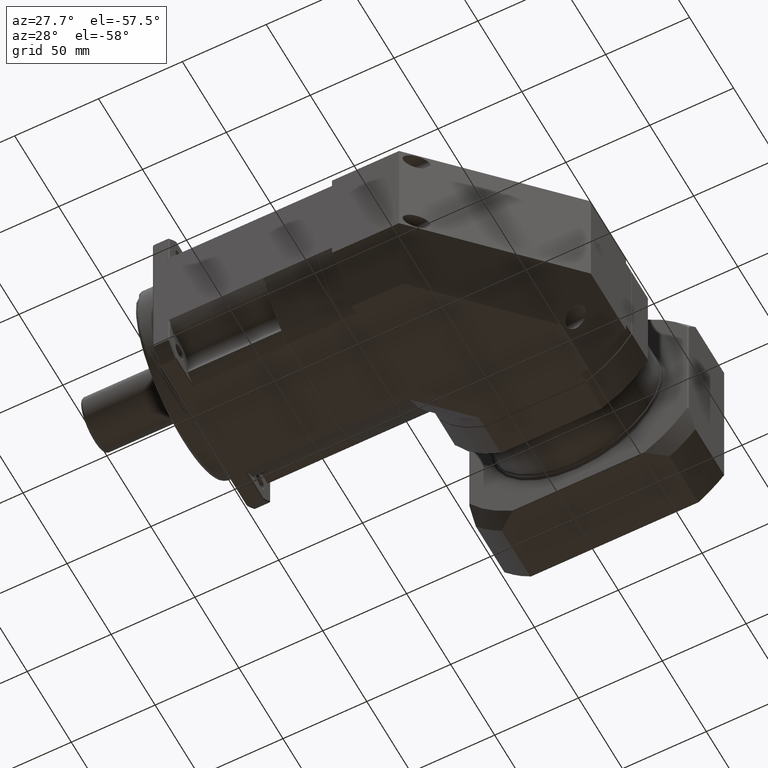
[diagram: clean part render]
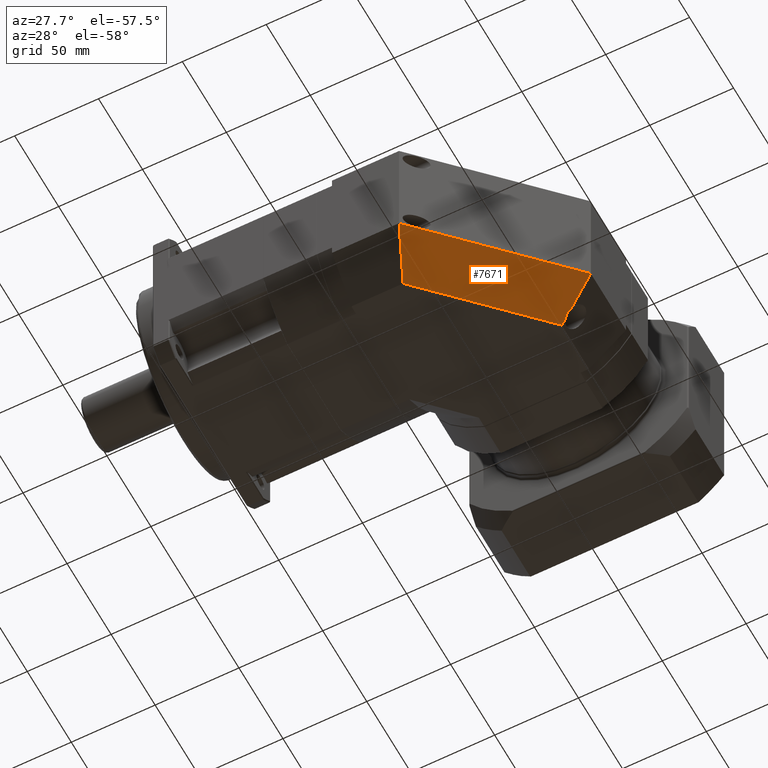
[diagram: same view with one face highlighted and labeled with its STEP entity id]
A machine part, auxiliary view. The second image highlights one B-rep face of the part: STEP entity #7671.
In plain terms, the highlighted planar face has unit normal (0.5, -0.5, -0.7071).
Its self-contained STEP definition (entity closure, byte-faithful):
#93=ELLIPSE('',#8392,11.0000000000021,5.5);
#260=LINE('',#12242,#650);
#265=LINE('',#12269,#655);
#268=LINE('',#12274,#658);
#303=LINE('',#12353,#693);
#304=LINE('',#12357,#694);
#650=VECTOR('',#9642,87.8406204335866);
#655=VECTOR('',#9675,4.34024426141715);
#658=VECTOR('',#9678,22.1049371921453);
#693=VECTOR('',#9765,32.4197666805731);
#694=VECTOR('',#9772,106.066017178003);
#1075=PLANE('',#8391);
#2128=FACE_OUTER_BOUND('',#2760,.T.);
#2760=EDGE_LOOP('',(#5898,#5899,#5900,#5901,#5902,#5903));
#3916=VERTEX_POINT('',#12239);
#3917=VERTEX_POINT('',#12241);
#3924=VERTEX_POINT('',#12266);
#3925=VERTEX_POINT('',#12267);
#3927=VERTEX_POINT('',#12272);
#3945=VERTEX_POINT('',#12349);
#4648=EDGE_CURVE('',#3917,#3916,#260,.T.);
#4658=EDGE_CURVE('',#3925,#3916,#265,.T.);
#4661=EDGE_CURVE('',#3927,#3924,#268,.T.);
#4702=EDGE_CURVE('',#3917,#3945,#303,.T.);
#4703=EDGE_CURVE('',#3925,#3924,#93,.T.);
#4704=EDGE_CURVE('',#3927,#3945,#304,.T.);
#5898=ORIENTED_EDGE('',*,*,#4703,.T.);
#5899=ORIENTED_EDGE('',*,*,#4661,.F.);
#5900=ORIENTED_EDGE('',*,*,#4704,.T.);
#5901=ORIENTED_EDGE('',*,*,#4702,.F.);
#5902=ORIENTED_EDGE('',*,*,#4648,.T.);
#5903=ORIENTED_EDGE('',*,*,#4658,.F.);
#7671=ADVANCED_FACE('',(#2128),#1075,.T.);
#8391=AXIS2_PLACEMENT_3D('',#12355,#9768,#9769);
#8392=AXIS2_PLACEMENT_3D('',#12356,#9770,#9771);
#9642=DIRECTION('',(0.707106781186685,0.70710678118641,2.9033841520024E-15));
#9675=DIRECTION('',(-0.678598344545831,0.281084637714892,-0.678598344545833));
#9678=DIRECTION('',(-0.678598344545831,0.281084637714892,-0.678598344545833));
#9765=DIRECTION('',(0.281084637714747,-0.678598344545863,0.678598344545861));
#9768=DIRECTION('center_axis',(0.499999999999904,-0.500000000000096,-0.707106781186547));
#9769=DIRECTION('ref_axis',(0.816496580927778,-9.76996261670137E-16,0.577350269189552));
#9770=DIRECTION('center_axis',(-0.499999999999904,0.500000000000096,0.707106781186547));
#9771=DIRECTION('ref_axis',(0.866025403784494,0.288675134594793,0.40824829046376));
#9772=DIRECTION('',(-0.707106781186685,-0.70710678118641,-2.9033841520024E-15));
#12239=CARTESIAN_POINT('',(196.698546431623,-2.93046582455017,-9.8842788835789));
#12241=CARTESIAN_POINT('',(134.585848059389,-65.0431641967608,-9.88427888357915));
#12242=CARTESIAN_POINT('',(213.142197245522,13.5131849893424,-9.88427888357883));
#12266=CARTESIAN_POINT('',(203.698172646744,-5.82980593439619,-2.88465266845832));
#12267=CARTESIAN_POINT('',(199.643829002346,-4.15044181036476,-6.93899631285666));
#12269=CARTESIAN_POINT('',(218.698546431623,-12.0431641967608,12.1157211164211));
#12272=CARTESIAN_POINT('',(218.698546431623,-12.0431641967608,12.1157211164211));
#12274=CARTESIAN_POINT('',(218.698546431623,-12.0431641967608,12.1157211164211));
#12349=CARTESIAN_POINT('',(143.698546431594,-87.0431641967608,12.1157211164208));
#12353=CARTESIAN_POINT('',(134.585848059389,-65.0431641967608,-9.88427888357915));
#12355=CARTESIAN_POINT('Origin',(220.920371838573,5.73501039628888,1.11572111642118));
#12356=CARTESIAN_POINT('Origin',(209.059908784815,-0.330664196760773,-2.98181309968471));
#12357=CARTESIAN_POINT('',(228.698546431623,-2.04316419676468,12.1157211164212));